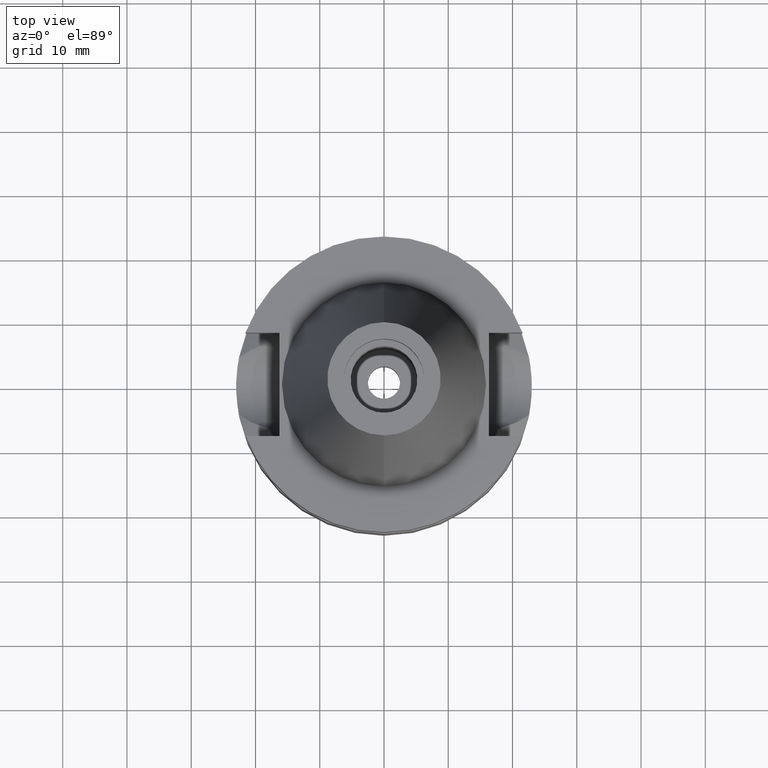
[diagram: clean part render]
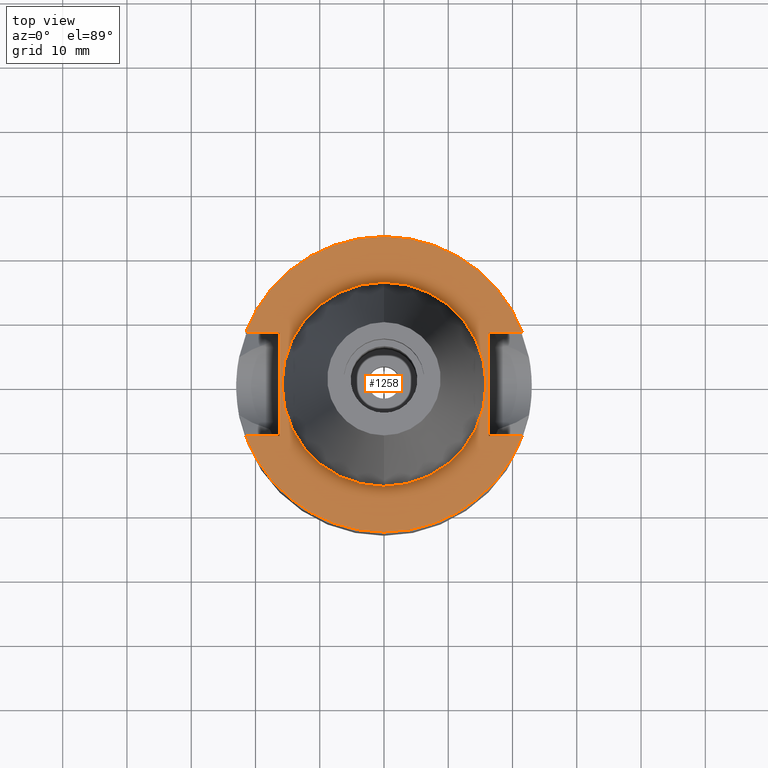
[diagram: same view with one face highlighted and labeled with its STEP entity id]
A machine part, top view. The second image highlights one B-rep face of the part: STEP entity #1258.
In plain terms, the highlighted planar face has unit normal (0, 0, -1).
Its self-contained STEP definition (entity closure, byte-faithful):
#94=DIRECTION('',(0.E0,1.E0,0.E0));
#95=VECTOR('',#94,1.61E1);
#96=CARTESIAN_POINT('',(-1.63E1,-8.05E0,-1.E0));
#97=LINE('',#96,#95);
#101=DIRECTION('',(-1.E0,9.347030801892E-14,0.E0));
#102=VECTOR('',#101,5.245243094473E0);
#103=CARTESIAN_POINT('',(-1.63E1,8.05E0,-1.E0));
#104=LINE('',#103,#102);
#108=CARTESIAN_POINT('',(0.E0,1.874566855455E-14,-1.E0));
#109=DIRECTION('',(0.E0,0.E0,-1.E0));
#110=DIRECTION('',(-9.367496997598E-1,3.5E-1,0.E0));
#111=AXIS2_PLACEMENT_3D('',#108,#109,#110);
#116=CARTESIAN_POINT('',(0.E0,1.874566855455E-14,-1.E0));
#117=DIRECTION('',(0.E0,0.E0,-1.E0));
#118=DIRECTION('',(0.E0,1.E0,0.E0));
#119=AXIS2_PLACEMENT_3D('',#116,#117,#118);
#124=DIRECTION('',(0.E0,-1.E0,0.E0));
#125=VECTOR('',#124,1.61E1);
#126=CARTESIAN_POINT('',(1.63E1,8.05E0,-1.E0));
#127=LINE('',#126,#125);
#131=DIRECTION('',(1.E0,-9.347030801892E-14,0.E0));
#132=VECTOR('',#131,5.245243094473E0);
#133=CARTESIAN_POINT('',(1.63E1,-8.05E0,-1.E0));
#134=LINE('',#133,#132);
#138=CARTESIAN_POINT('',(0.E0,1.874566855455E-14,-1.E0));
#139=DIRECTION('',(0.E0,0.E0,-1.E0));
#140=DIRECTION('',(9.367496997598E-1,-3.5E-1,0.E0));
#141=AXIS2_PLACEMENT_3D('',#138,#139,#140);
#146=CARTESIAN_POINT('',(0.E0,1.874566855455E-14,-1.E0));
#147=DIRECTION('',(0.E0,0.E0,-1.E0));
#148=DIRECTION('',(0.E0,-1.E0,0.E0));
#149=AXIS2_PLACEMENT_3D('',#146,#147,#148);
#154=CARTESIAN_POINT('',(0.E0,1.874566855455E-14,-9.999999999999E-1));
#155=DIRECTION('',(0.E0,0.E0,1.E0));
#156=DIRECTION('',(0.E0,-1.E0,0.E0));
#157=AXIS2_PLACEMENT_3D('',#154,#155,#156);
#162=CARTESIAN_POINT('',(0.E0,1.874566855455E-14,-9.999999999999E-1));
#163=DIRECTION('',(0.E0,0.E0,1.E0));
#164=DIRECTION('',(0.E0,1.E0,0.E0));
#165=AXIS2_PLACEMENT_3D('',#162,#163,#164);
#210=DIRECTION('',(-1.E0,-9.313164748262E-14,0.E0));
#211=VECTOR('',#210,5.245243094473E0);
#212=CARTESIAN_POINT('',(-1.63E1,-8.05E0,-1.E0));
#213=LINE('',#212,#211);
#333=DIRECTION('',(1.E0,9.380896855522E-14,0.E0));
#334=VECTOR('',#333,5.245243094473E0);
#335=CARTESIAN_POINT('',(1.63E1,8.05E0,-1.E0));
#336=LINE('',#335,#334);
#1125=CARTESIAN_POINT('',(-1.63E1,-8.05E0,-1.E0));
#1126=VERTEX_POINT('',#1125);
#1127=CARTESIAN_POINT('',(-2.154524309447E1,-8.05E0,-1.E0));
#1128=VERTEX_POINT('',#1127);
#1129=CARTESIAN_POINT('',(-1.63E1,8.05E0,-1.E0));
#1130=VERTEX_POINT('',#1129);
#1131=CARTESIAN_POINT('',(-2.154524309447E1,8.05E0,-1.E0));
#1132=VERTEX_POINT('',#1131);
#1133=CARTESIAN_POINT('',(0.E0,2.3E1,-1.E0));
#1134=CARTESIAN_POINT('',(2.154524309447E1,8.05E0,-1.E0));
#1135=VERTEX_POINT('',#1133);
#1136=VERTEX_POINT('',#1134);
#1137=CARTESIAN_POINT('',(1.63E1,8.05E0,-1.E0));
#1138=VERTEX_POINT('',#1137);
#1139=CARTESIAN_POINT('',(1.63E1,-8.05E0,-1.E0));
#1140=VERTEX_POINT('',#1139);
#1141=CARTESIAN_POINT('',(2.154524309447E1,-8.05E0,-1.E0));
#1142=VERTEX_POINT('',#1141);
#1143=CARTESIAN_POINT('',(0.E0,-2.3E1,-1.E0));
#1144=VERTEX_POINT('',#1143);
#1145=CARTESIAN_POINT('',(0.E0,-1.5875E1,-9.999999999999E-1));
#1146=CARTESIAN_POINT('',(0.E0,1.5875E1,-9.999999999999E-1));
#1147=VERTEX_POINT('',#1145);
#1148=VERTEX_POINT('',#1146);
#1227=CARTESIAN_POINT('',(0.E0,1.212400331156E-14,-1.E0));
#1228=DIRECTION('',(0.E0,0.E0,-1.E0));
#1229=DIRECTION('',(0.E0,-1.E0,0.E0));
#1230=AXIS2_PLACEMENT_3D('',#1227,#1228,#1229);
#1231=PLANE('',#1230);
#1233=ORIENTED_EDGE('',*,*,#1232,.T.);
#1235=ORIENTED_EDGE('',*,*,#1234,.T.);
#1237=ORIENTED_EDGE('',*,*,#1236,.T.);
#1239=ORIENTED_EDGE('',*,*,#1238,.T.);
#1241=ORIENTED_EDGE('',*,*,#1240,.F.);
#1243=ORIENTED_EDGE('',*,*,#1242,.T.);
#1245=ORIENTED_EDGE('',*,*,#1244,.T.);
#1247=ORIENTED_EDGE('',*,*,#1246,.T.);
#1249=ORIENTED_EDGE('',*,*,#1248,.T.);
#1251=ORIENTED_EDGE('',*,*,#1250,.F.);
#1252=EDGE_LOOP('',(#1233,#1235,#1237,#1239,#1241,#1243,#1245,#1247,#1249,
#1251));
#1253=FACE_OUTER_BOUND('',#1252,.F.);
#1254=ORIENTED_EDGE('',*,*,#1206,.T.);
#1255=ORIENTED_EDGE('',*,*,#1222,.T.);
#1256=EDGE_LOOP('',(#1254,#1255));
#1257=FACE_BOUND('',#1256,.F.);
#112=CIRCLE('',#111,2.3E1);
#120=CIRCLE('',#119,2.3E1);
#142=CIRCLE('',#141,2.3E1);
#150=CIRCLE('',#149,2.3E1);
#158=CIRCLE('',#157,1.5875E1);
#166=CIRCLE('',#165,1.5875E1);
#1206=EDGE_CURVE('',#1147,#1148,#158,.T.);
#1222=EDGE_CURVE('',#1148,#1147,#166,.T.);
#1232=EDGE_CURVE('',#1126,#1130,#97,.T.);
#1234=EDGE_CURVE('',#1130,#1132,#104,.T.);
#1236=EDGE_CURVE('',#1132,#1135,#112,.T.);
#1238=EDGE_CURVE('',#1135,#1136,#120,.T.);
#1240=EDGE_CURVE('',#1138,#1136,#336,.T.);
#1242=EDGE_CURVE('',#1138,#1140,#127,.T.);
#1244=EDGE_CURVE('',#1140,#1142,#134,.T.);
#1246=EDGE_CURVE('',#1142,#1144,#142,.T.);
#1248=EDGE_CURVE('',#1144,#1128,#150,.T.);
#1250=EDGE_CURVE('',#1126,#1128,#213,.T.);
#1258=ADVANCED_FACE('',(#1253,#1257),#1231,.F.);